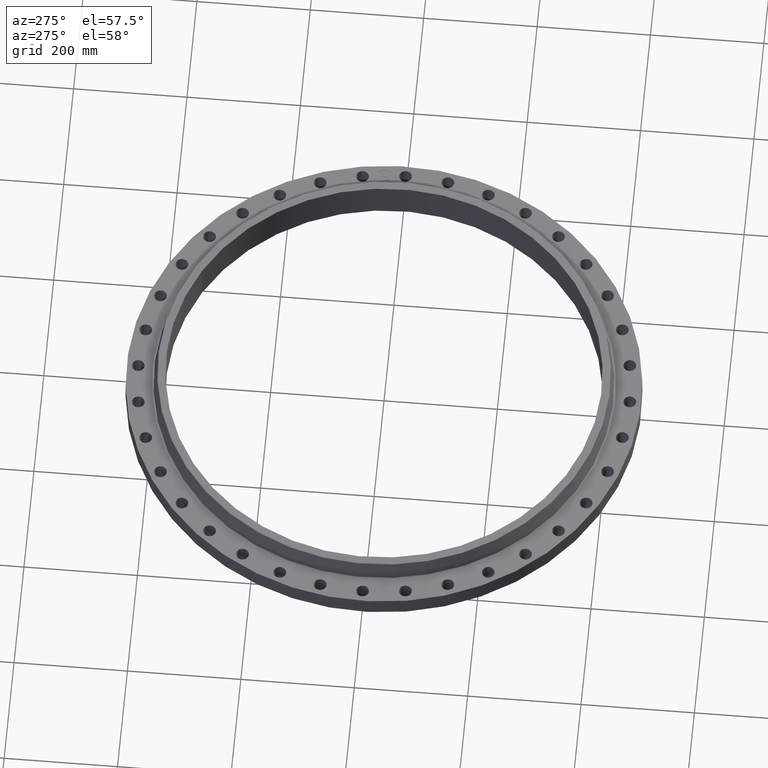
[diagram: clean part render]
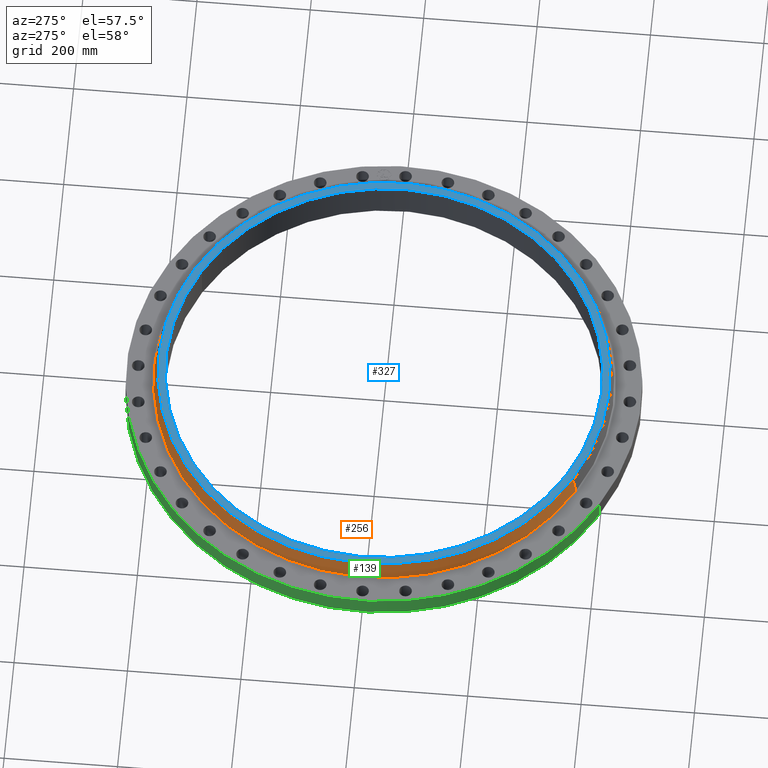
[diagram: same view with three faces highlighted in distinct colors, each labeled with its STEP entity id]
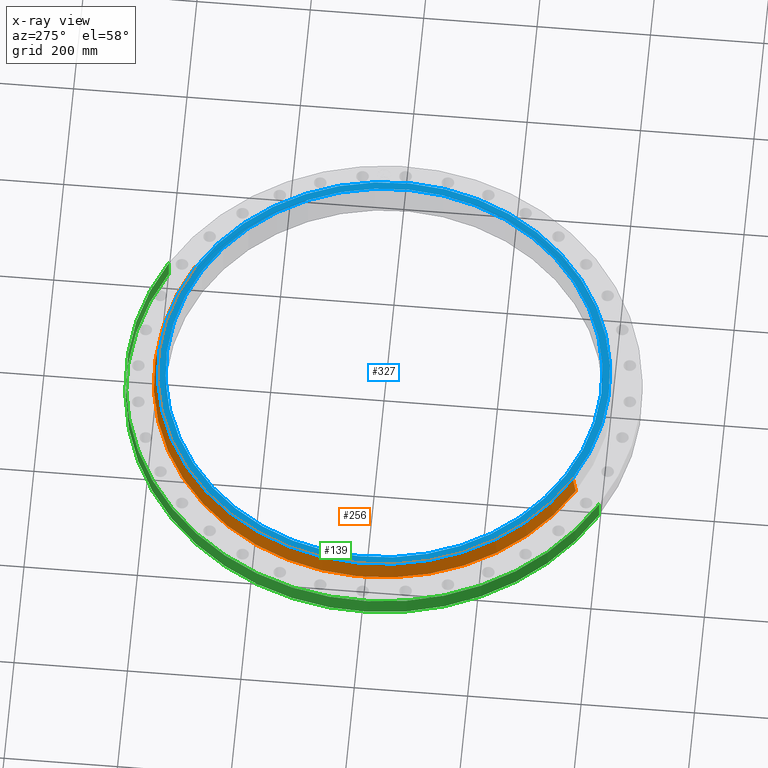
[diagram: x-ray of the same camera — body ghosted, the three highlighted faces saturated]
A machine part, auxiliary view with three faces highlighted in distinct colors.
The next image is the same camera in x-ray (body ghosted, the three faces saturated) — at least one of them is partly hidden behind the body in this view.
Their STEP definitions:

[orange] entity #256 — the highlighted conical surface has half-angle 10 deg.
#204=AXIS2_PLACEMENT_3D('Circle Axis2P3D',#202,#203,$) ;
#217=AXIS2_PLACEMENT_3D('Cone Axis2P3D',#214,#215,#216) ;
#247=AXIS2_PLACEMENT_3D('Circle Axis2P3D',#245,#246,$) ;
#175=CARTESIAN_POINT('Vertex',(7.63785171369,13.9809937822,1.42958110935)) ;
#182=CARTESIAN_POINT('Vertex',(-7.63785171369,-13.9809937822,1.42958110935)) ;
#202=CARTESIAN_POINT('Axis2P3D Location',(0.,0.,1.42958110935)) ;
#214=CARTESIAN_POINT('Axis2P3D Location',(0.,0.,2.70041889067)) ;
#219=CARTESIAN_POINT('Line Origine',(7.58413615986,13.8826681204,2.06500000001)) ;
#223=CARTESIAN_POINT('Vertex',(7.53042060602,13.7843424587,2.70041889067)) ;
#230=CARTESIAN_POINT('Vertex',(-7.53042060602,-13.7843424587,2.70041889067)) ;
#233=CARTESIAN_POINT('Line Origine',(-7.58413615986,-13.8826681204,2.06500000001)) ;
#245=CARTESIAN_POINT('Axis2P3D Location',(0.,0.,2.70041889067)) ;
#203=DIRECTION('Axis2P3D Direction',(0.,0.,-0.0393700787402)) ;
#215=DIRECTION('Axis2P3D Direction',(0.,0.,-0.0393700787402)) ;
#216=DIRECTION('Axis2P3D XDirection',(-0.0188750212049,-0.0345504945626,0.)) ;
#220=DIRECTION('Vector Direction',(0.00327761303565,0.00599963041829,-0.03877195878)) ;
#234=DIRECTION('Vector Direction',(-0.00327761303565,-0.00599963041829,-0.03877195878)) ;
#246=DIRECTION('Axis2P3D Direction',(0.,0.,-0.0393700787402)) ;
#221=VECTOR('Line Direction',#220,0.0393700787402) ;
#235=VECTOR('Line Direction',#234,0.0393700787402) ;
#251=ORIENTED_EDGE('',*,*,#206,.F.) ;
#252=ORIENTED_EDGE('',*,*,#237,.T.) ;
#253=ORIENTED_EDGE('',*,*,#249,.T.) ;
#254=ORIENTED_EDGE('',*,*,#225,.F.) ;
#256=ADVANCED_FACE('PartBody',(#255),#218,.T.) ;
#205=CIRCLE('generated circle',#204,15.9312575128) ;
#248=CIRCLE('generated circle',#247,15.7071745238) ;
#218=CONICAL_SURFACE('Cone',#217,15.7071745238,0.174532925199) ;
#206=EDGE_CURVE('',#183,#176,#205,.T.) ;
#225=EDGE_CURVE('',#176,#224,#222,.F.) ;
#237=EDGE_CURVE('',#183,#231,#236,.F.) ;
#249=EDGE_CURVE('',#231,#224,#248,.T.) ;
#250=EDGE_LOOP('',(#251,#252,#253,#254)) ;
#255=FACE_OUTER_BOUND('',#250,.T.) ;
#222=LINE('Line',#219,#221) ;
#236=LINE('Line',#233,#235) ;
#176=VERTEX_POINT('',#175) ;
#183=VERTEX_POINT('',#182) ;
#224=VERTEX_POINT('',#223) ;
#231=VERTEX_POINT('',#230) ;

[blue] entity #327 — the highlighted planar face has unit normal (0, 0, -1).
#271=AXIS2_PLACEMENT_3D('Circle Axis2P3D',#269,#270,$) ;
#290=AXIS2_PLACEMENT_3D('Circle Axis2P3D',#288,#289,$) ;
#303=AXIS2_PLACEMENT_3D('Plane Axis2P3D',#300,#301,#302) ;
#311=AXIS2_PLACEMENT_3D('Circle Axis2P3D',#309,#310,$) ;
#320=AXIS2_PLACEMENT_3D('Circle Axis2P3D',#318,#319,$) ;
#266=CARTESIAN_POINT('Vertex',(7.50209208678,13.732487452,2.75000000001)) ;
#269=CARTESIAN_POINT('Axis2P3D Location',(0.,0.,2.75000000001)) ;
#273=CARTESIAN_POINT('Vertex',(-7.50209208678,-13.732487452,2.75000000001)) ;
#288=CARTESIAN_POINT('Axis2P3D Location',(0.,0.,2.75000000001)) ;
#300=CARTESIAN_POINT('Axis2P3D Location',(0.,15.6480860586,2.75000000001)) ;
#309=CARTESIAN_POINT('Axis2P3D Location',(0.,0.,2.75000000001)) ;
#313=CARTESIAN_POINT('Vertex',(-7.25131127142,-13.2734362486,2.75000000001)) ;
#315=CARTESIAN_POINT('Vertex',(7.25131127142,13.2734362486,2.75000000001)) ;
#318=CARTESIAN_POINT('Axis2P3D Location',(0.,0.,2.75000000001)) ;
#270=DIRECTION('Axis2P3D Direction',(0.,0.,-0.0393700787402)) ;
#289=DIRECTION('Axis2P3D Direction',(0.,0.,-0.0393700787402)) ;
#301=DIRECTION('Axis2P3D Direction',(0.,0.,-0.0393700787402)) ;
#302=DIRECTION('Axis2P3D XDirection',(0.0393700787402,0.,0.)) ;
#310=DIRECTION('Axis2P3D Direction',(0.,0.,-0.0393700787402)) ;
#319=DIRECTION('Axis2P3D Direction',(0.,0.,-0.0393700787402)) ;
#306=ORIENTED_EDGE('',*,*,#275,.F.) ;
#307=ORIENTED_EDGE('',*,*,#292,.F.) ;
#324=ORIENTED_EDGE('',*,*,#317,.T.) ;
#325=ORIENTED_EDGE('',*,*,#322,.T.) ;
#326=FACE_BOUND('',#323,.T.) ;
#327=ADVANCED_FACE('PartBody',(#308,#326),#304,.F.) ;
#272=CIRCLE('generated circle',#271,15.6480860586) ;
#291=CIRCLE('generated circle',#290,15.6480860586) ;
#312=CIRCLE('generated circle',#311,15.1250000001) ;
#321=CIRCLE('generated circle',#320,15.1250000001) ;
#275=EDGE_CURVE('',#267,#274,#272,.T.) ;
#292=EDGE_CURVE('',#274,#267,#291,.T.) ;
#317=EDGE_CURVE('',#314,#316,#312,.T.) ;
#322=EDGE_CURVE('',#316,#314,#321,.T.) ;
#305=EDGE_LOOP('',(#306,#307)) ;
#323=EDGE_LOOP('',(#324,#325)) ;
#308=FACE_OUTER_BOUND('',#305,.T.) ;
#304=PLANE('',#303) ;
#267=VERTEX_POINT('',#266) ;
#274=VERTEX_POINT('',#273) ;
#314=VERTEX_POINT('',#313) ;
#316=VERTEX_POINT('',#315) ;

[green] entity #139 — the highlighted cylindrical surface (partial cylindrical patch) has radius 454.025 mm, axis along (0, 0, -1).
#103=AXIS2_PLACEMENT_3D('Cylinder Axis2P3D',#100,#101,#102) ;
#107=AXIS2_PLACEMENT_3D('Circle Axis2P3D',#105,#106,$) ;
#123=AXIS2_PLACEMENT_3D('Circle Axis2P3D',#121,#122,$) ;
#100=CARTESIAN_POINT('Axis2P3D Location',(0.,0.,1.34375000001)) ;
#105=CARTESIAN_POINT('Axis2P3D Location',(0.,0.,2.23792987641E-015)) ;
#109=CARTESIAN_POINT('Vertex',(-8.56973150258,-15.6867882939,2.23792987641E-015)) ;
#111=CARTESIAN_POINT('Vertex',(8.56973150258,15.6867882939,2.23792987641E-015)) ;
#114=CARTESIAN_POINT('Line Origine',(-8.56973150258,-15.6867882939,0.690000000003)) ;
#118=CARTESIAN_POINT('Vertex',(-8.56973150258,-15.6867882939,1.38000000001)) ;
#121=CARTESIAN_POINT('Axis2P3D Location',(0.,0.,1.38000000001)) ;
#125=CARTESIAN_POINT('Vertex',(8.56973150258,15.6867882939,1.38000000001)) ;
#128=CARTESIAN_POINT('Line Origine',(8.56973150258,15.6867882939,0.690000000003)) ;
#101=DIRECTION('Axis2P3D Direction',(0.,0.,-0.0393700787402)) ;
#102=DIRECTION('Axis2P3D XDirection',(0.0188750212049,0.0345504945626,0.)) ;
#106=DIRECTION('Axis2P3D Direction',(0.,0.,-0.0393700787402)) ;
#115=DIRECTION('Vector Direction',(0.,0.,-0.0393700787402)) ;
#122=DIRECTION('Axis2P3D Direction',(0.,0.,-0.0393700787402)) ;
#129=DIRECTION('Vector Direction',(0.,0.,-0.0393700787402)) ;
#116=VECTOR('Line Direction',#115,0.0393700787402) ;
#130=VECTOR('Line Direction',#129,0.0393700787402) ;
#134=ORIENTED_EDGE('',*,*,#113,.F.) ;
#135=ORIENTED_EDGE('',*,*,#120,.T.) ;
#136=ORIENTED_EDGE('',*,*,#127,.T.) ;
#137=ORIENTED_EDGE('',*,*,#132,.F.) ;
#139=ADVANCED_FACE('PartBody',(#138),#104,.T.) ;
#108=CIRCLE('generated circle',#107,17.8750000001) ;
#124=CIRCLE('generated circle',#123,17.8750000001) ;
#104=CYLINDRICAL_SURFACE('generated cylinder',#103,17.8750000001) ;
#113=EDGE_CURVE('',#110,#112,#108,.T.) ;
#120=EDGE_CURVE('',#110,#119,#117,.F.) ;
#127=EDGE_CURVE('',#119,#126,#124,.T.) ;
#132=EDGE_CURVE('',#112,#126,#131,.F.) ;
#133=EDGE_LOOP('',(#134,#135,#136,#137)) ;
#138=FACE_OUTER_BOUND('',#133,.T.) ;
#117=LINE('Line',#114,#116) ;
#131=LINE('Line',#128,#130) ;
#110=VERTEX_POINT('',#109) ;
#112=VERTEX_POINT('',#111) ;
#119=VERTEX_POINT('',#118) ;
#126=VERTEX_POINT('',#125) ;